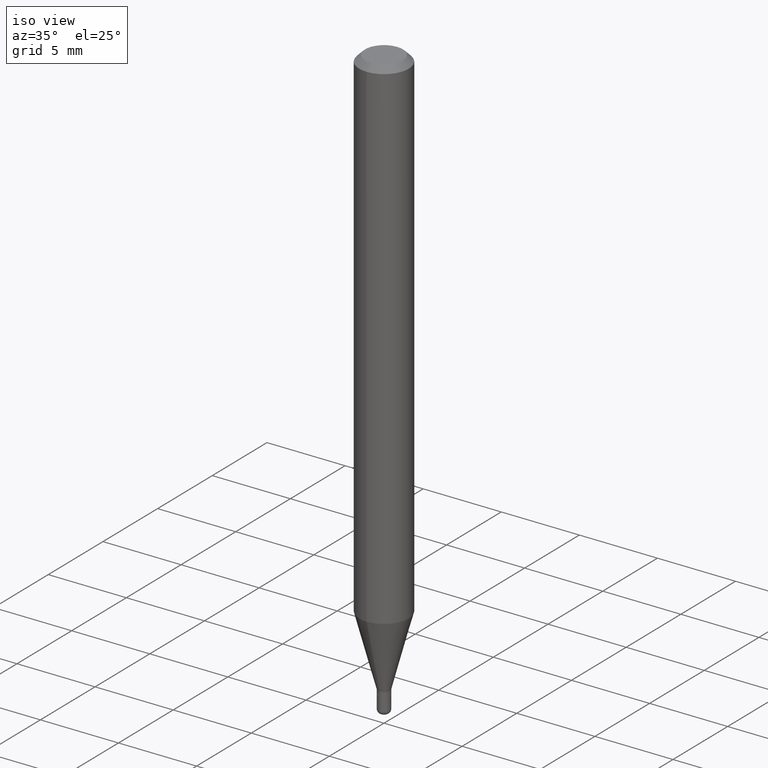
[diagram: clean part render]
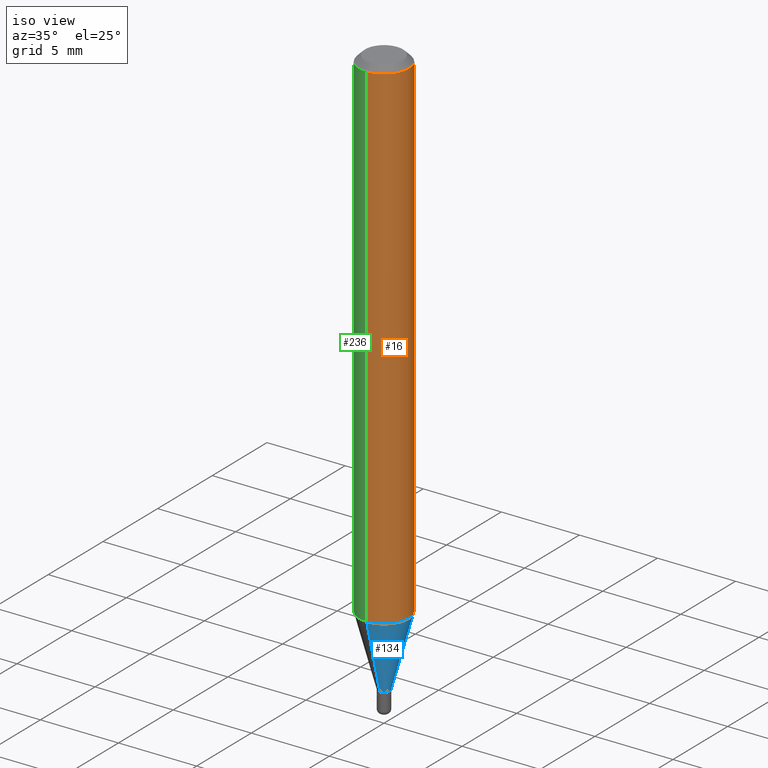
[diagram: same view with three faces highlighted in distinct colors, each labeled with its STEP entity id]
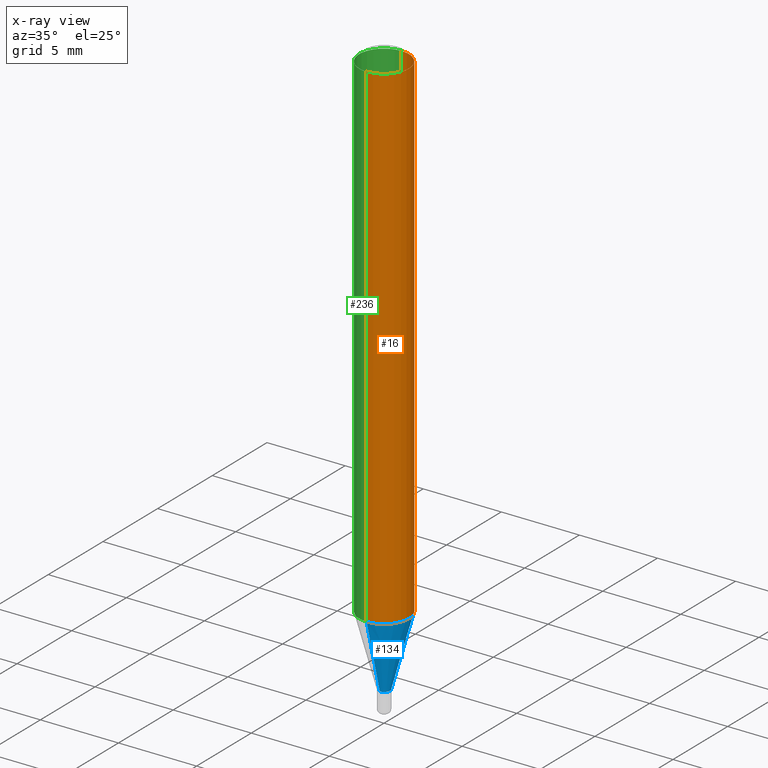
[diagram: x-ray of the same camera — body ghosted, the three highlighted faces saturated]
A machine part, iso view with three faces highlighted in distinct colors.
The next image is the same camera in x-ray (body ghosted, the three faces saturated) — at least one of them is partly hidden behind the body in this view.
Their STEP definitions:

[orange] entity #16 — the highlighted cylindrical surface (edge-blend (fillet) strip) has radius 1.5875 mm, axis along (-0, 0, 1).
#1 = ORIENTED_EDGE ( 'NONE', *, *, #113, .T. ) ;
#7 = DIRECTION ( 'NONE',  ( -2.445486429573082884E-29, 3.491456101148545241E-15, 1.000000000000000000 ) ) ;
#8 = EDGE_CURVE ( 'NONE', #345, #23, #160, .T. ) ;
#15 = ORIENTED_EDGE ( 'NONE', *, *, #8, .F. ) ;
#16 = ADVANCED_FACE ( 'NONE', ( #484 ), #20, .T. ) ;
#17 = DIRECTION ( 'NONE',  ( -2.445486429573083164E-29, 3.491456101148545241E-15, 1.000000000000000000 ) ) ;
#20 = CYLINDRICAL_SURFACE ( 'NONE', #120, 0.06250000000000000000 ) ;
#23 = VERTEX_POINT ( 'NONE', #129 ) ;
#27 = DIRECTION ( 'NONE',  ( -6.982962677686265922E-15, -1.000000000000000000, 3.483106191921935554E-15 ) ) ;
#85 = AXIS2_PLACEMENT_3D ( 'NONE', #322, #435, #27 ) ;
#91 = DIRECTION ( 'NONE',  ( -6.982962677686265922E-15, -1.000000000000000000, 3.491456101148544846E-15 ) ) ;
#113 = EDGE_CURVE ( 'NONE', #345, #328, #374, .T. ) ;
#120 = AXIS2_PLACEMENT_3D ( 'NONE', #304, #494, #91 ) ;
#129 = CARTESIAN_POINT ( 'NONE',  ( -4.364351673553912750E-16, -0.06250000000000005551, -0.01499999999999948597 ) ) ;
#151 = CARTESIAN_POINT ( 'NONE',  ( 4.440892098500937762E-16, 0.06249999999999993755, -0.01499999999999992138 ) ) ;
#160 = LINE ( 'NONE', #200, #175 ) ;
#165 = EDGE_LOOP ( 'NONE', ( #1, #517, #490, #15 ) ) ;
#167 = AXIS2_PLACEMENT_3D ( 'NONE', #174, #17, #269 ) ;
#174 = CARTESIAN_POINT ( 'NONE',  ( 3.100210609524725780E-29, -4.426215216970220777E-15, -1.267727586640478687 ) ) ;
#175 = VECTOR ( 'NONE', #7, 39.37007874015748143 ) ;
#200 = CARTESIAN_POINT ( 'NONE',  ( -4.364351673553916201E-16, -0.06250000000000000000, 2.182160063217840529E-16 ) ) ;
#226 = CARTESIAN_POINT ( 'NONE',  ( 4.440892098500932831E-16, 0.06249999999999555911, -1.267727586640479132 ) ) ;
#265 = EDGE_CURVE ( 'NONE', #23, #482, #335, .T. ) ;
#269 = DIRECTION ( 'NONE',  ( -6.982962677686265922E-15, -1.000000000000000000, 4.370956789862821150E-15 ) ) ;
#304 = CARTESIAN_POINT ( 'NONE',  ( 0.000000000000000000, 0.000000000000000000, 0.000000000000000000 ) ) ;
#313 = LINE ( 'NONE', #351, #411 ) ;
#317 = CARTESIAN_POINT ( 'NONE',  ( -4.364351673553607559E-16, -0.06250000000000444089, -1.267727586640478465 ) ) ;
#319 = DIRECTION ( 'NONE',  ( -2.445486429573082884E-29, 3.491456101148545241E-15, 1.000000000000000000 ) ) ;
#322 = CARTESIAN_POINT ( 'NONE',  ( 3.668229644359552001E-31, -5.237184151722713929E-17, -0.01499999999999970281 ) ) ;
#328 = VERTEX_POINT ( 'NONE', #226 ) ;
#335 = CIRCLE ( 'NONE', #85, 0.06250000000000000000 ) ;
#345 = VERTEX_POINT ( 'NONE', #317 ) ;
#351 = CARTESIAN_POINT ( 'NONE',  ( 4.440892098500625669E-16, 0.06250000000000000000, -2.182160063217840529E-16 ) ) ;
#374 = CIRCLE ( 'NONE', #167, 0.06250000000000000000 ) ;
#411 = VECTOR ( 'NONE', #319, 39.37007874015748143 ) ;
#419 = EDGE_CURVE ( 'NONE', #328, #482, #313, .T. ) ;
#435 = DIRECTION ( 'NONE',  ( -2.445486429573083164E-29, 3.491456101148545241E-15, 1.000000000000000000 ) ) ;
#482 = VERTEX_POINT ( 'NONE', #151 ) ;
#484 = FACE_OUTER_BOUND ( 'NONE', #165, .T. ) ;
#490 = ORIENTED_EDGE ( 'NONE', *, *, #265, .F. ) ;
#494 = DIRECTION ( 'NONE',  ( -2.445486429573083164E-29, 3.491456101148545241E-15, 1.000000000000000000 ) ) ;
#517 = ORIENTED_EDGE ( 'NONE', *, *, #419, .T. ) ;

[blue] entity #134 — the highlighted conical surface has half-angle 15 deg.
#13 = CONICAL_SURFACE ( 'NONE', #445, 0.01500000000000004455, 0.2617993877991494078 ) ;
#17 = DIRECTION ( 'NONE',  ( -2.445486429573083164E-29, 3.491456101148545241E-15, 1.000000000000000000 ) ) ;
#24 = CARTESIAN_POINT ( 'NONE',  ( 3.533727890733106107E-29, -5.045154066159648808E-15, -1.445000000000000284 ) ) ;
#28 = VECTOR ( 'NONE', #380, 39.37007874015748854 ) ;
#31 = CARTESIAN_POINT ( 'NONE',  ( -1.047444401652589802E-16, -0.01500000000000509086, -1.445000000000000284 ) ) ;
#38 = CIRCLE ( 'NONE', #361, 0.01500000000000004455 ) ;
#61 = ORIENTED_EDGE ( 'NONE', *, *, #113, .F. ) ;
#72 = CARTESIAN_POINT ( 'NONE',  ( 1.065814103640506706E-16, 0.01499999999999499997, -1.445000000000000284 ) ) ;
#92 = CARTESIAN_POINT ( 'NONE',  ( 3.533727890733106107E-29, -5.045154066159648808E-15, -1.445000000000000284 ) ) ;
#95 = EDGE_CURVE ( 'NONE', #410, #118, #38, .T. ) ;
#97 = DIRECTION ( 'NONE',  ( -6.982962677686266711E-15, -1.000000000000000000, 0.000000000000000000 ) ) ;
#113 = EDGE_CURVE ( 'NONE', #345, #328, #374, .T. ) ;
#118 = VERTEX_POINT ( 'NONE', #262 ) ;
#134 = ADVANCED_FACE ( 'NONE', ( #379 ), #13, .T. ) ;
#141 = LINE ( 'NONE', #72, #28 ) ;
#146 = LINE ( 'NONE', #386, #375 ) ;
#156 = EDGE_LOOP ( 'NONE', ( #180, #363, #61, #460 ) ) ;
#167 = AXIS2_PLACEMENT_3D ( 'NONE', #174, #17, #269 ) ;
#174 = CARTESIAN_POINT ( 'NONE',  ( 3.100210609524725780E-29, -4.426215216970220777E-15, -1.267727586640478687 ) ) ;
#179 = DIRECTION ( 'NONE',  ( -2.445486429573083164E-29, 3.491456101148545241E-15, 1.000000000000000000 ) ) ;
#180 = ORIENTED_EDGE ( 'NONE', *, *, #95, .T. ) ;
#226 = CARTESIAN_POINT ( 'NONE',  ( 4.440892098500932831E-16, 0.06249999999999555911, -1.267727586640479132 ) ) ;
#262 = CARTESIAN_POINT ( 'NONE',  ( 2.753353101070722973E-16, 0.01499999999999500171, -1.445000000000000284 ) ) ;
#269 = DIRECTION ( 'NONE',  ( -6.982962677686265922E-15, -1.000000000000000000, 4.370956789862821150E-15 ) ) ;
#314 = EDGE_CURVE ( 'NONE', #410, #345, #146, .T. ) ;
#317 = CARTESIAN_POINT ( 'NONE',  ( -4.364351673553607559E-16, -0.06250000000000444089, -1.267727586640478465 ) ) ;
#328 = VERTEX_POINT ( 'NONE', #226 ) ;
#345 = VERTEX_POINT ( 'NONE', #317 ) ;
#346 = DIRECTION ( 'NONE',  ( -6.982962677686266711E-15, -1.000000000000000000, 0.000000000000000000 ) ) ;
#360 = EDGE_CURVE ( 'NONE', #118, #328, #141, .T. ) ;
#361 = AXIS2_PLACEMENT_3D ( 'NONE', #92, #179, #346 ) ;
#363 = ORIENTED_EDGE ( 'NONE', *, *, #360, .T. ) ;
#374 = CIRCLE ( 'NONE', #167, 0.06250000000000000000 ) ;
#375 = VECTOR ( 'NONE', #470, 39.37007874015748854 ) ;
#379 = FACE_OUTER_BOUND ( 'NONE', #156, .T. ) ;
#380 = DIRECTION ( 'NONE',  ( 1.839019923739594004E-15, 0.2588190451025240701, 0.9659258262890673130 ) ) ;
#386 = CARTESIAN_POINT ( 'NONE',  ( -1.047444401652589802E-16, -0.01500000000000509086, -1.445000000000000284 ) ) ;
#410 = VERTEX_POINT ( 'NONE', #31 ) ;
#445 = AXIS2_PLACEMENT_3D ( 'NONE', #24, #461, #97 ) ;
#460 = ORIENTED_EDGE ( 'NONE', *, *, #314, .F. ) ;
#461 = DIRECTION ( 'NONE',  ( -2.445486429573083164E-29, 3.491456101148545241E-15, 1.000000000000000000 ) ) ;
#470 = DIRECTION ( 'NONE',  ( -1.807323732225323828E-15, -0.2588190451025172978, 0.9659258262890690894 ) ) ;

[green] entity #236 — the highlighted cylindrical surface (edge-blend (fillet) strip) has radius 1.5875 mm, axis along (-0, 0, 1).
#5 = AXIS2_PLACEMENT_3D ( 'NONE', #391, #230, #393 ) ;
#7 = DIRECTION ( 'NONE',  ( -2.445486429573082884E-29, 3.491456101148545241E-15, 1.000000000000000000 ) ) ;
#8 = EDGE_CURVE ( 'NONE', #345, #23, #160, .T. ) ;
#23 = VERTEX_POINT ( 'NONE', #129 ) ;
#34 = DIRECTION ( 'NONE',  ( -6.982962677686265922E-15, -1.000000000000000000, 3.491456101148544846E-15 ) ) ;
#63 = ORIENTED_EDGE ( 'NONE', *, *, #8, .T. ) ;
#71 = CARTESIAN_POINT ( 'NONE',  ( 0.000000000000000000, 0.000000000000000000, 0.000000000000000000 ) ) ;
#100 = DIRECTION ( 'NONE',  ( -2.445486429573083164E-29, 3.491456101148545241E-15, 1.000000000000000000 ) ) ;
#129 = CARTESIAN_POINT ( 'NONE',  ( -4.364351673553912750E-16, -0.06250000000000005551, -0.01499999999999948597 ) ) ;
#151 = CARTESIAN_POINT ( 'NONE',  ( 4.440892098500937762E-16, 0.06249999999999993755, -0.01499999999999992138 ) ) ;
#160 = LINE ( 'NONE', #200, #175 ) ;
#175 = VECTOR ( 'NONE', #7, 39.37007874015748143 ) ;
#189 = DIRECTION ( 'NONE',  ( -2.445486429573083164E-29, 3.491456101148545241E-15, 1.000000000000000000 ) ) ;
#200 = CARTESIAN_POINT ( 'NONE',  ( -4.364351673553916201E-16, -0.06250000000000000000, 2.182160063217840529E-16 ) ) ;
#213 = EDGE_CURVE ( 'NONE', #328, #345, #489, .T. ) ;
#226 = CARTESIAN_POINT ( 'NONE',  ( 4.440892098500932831E-16, 0.06249999999999555911, -1.267727586640479132 ) ) ;
#230 = DIRECTION ( 'NONE',  ( -2.445486429573083164E-29, 3.491456101148545241E-15, 1.000000000000000000 ) ) ;
#236 = ADVANCED_FACE ( 'NONE', ( #284 ), #432, .T. ) ;
#249 = ORIENTED_EDGE ( 'NONE', *, *, #427, .F. ) ;
#284 = FACE_OUTER_BOUND ( 'NONE', #290, .T. ) ;
#290 = EDGE_LOOP ( 'NONE', ( #311, #292, #63, #249 ) ) ;
#292 = ORIENTED_EDGE ( 'NONE', *, *, #213, .T. ) ;
#311 = ORIENTED_EDGE ( 'NONE', *, *, #419, .F. ) ;
#313 = LINE ( 'NONE', #351, #411 ) ;
#315 = DIRECTION ( 'NONE',  ( -6.982962677686265922E-15, -1.000000000000000000, 4.370956789862821150E-15 ) ) ;
#317 = CARTESIAN_POINT ( 'NONE',  ( -4.364351673553607559E-16, -0.06250000000000444089, -1.267727586640478465 ) ) ;
#319 = DIRECTION ( 'NONE',  ( -2.445486429573082884E-29, 3.491456101148545241E-15, 1.000000000000000000 ) ) ;
#328 = VERTEX_POINT ( 'NONE', #226 ) ;
#345 = VERTEX_POINT ( 'NONE', #317 ) ;
#349 = AXIS2_PLACEMENT_3D ( 'NONE', #71, #100, #34 ) ;
#351 = CARTESIAN_POINT ( 'NONE',  ( 4.440892098500625669E-16, 0.06250000000000000000, -2.182160063217840529E-16 ) ) ;
#385 = CIRCLE ( 'NONE', #5, 0.06250000000000000000 ) ;
#390 = CARTESIAN_POINT ( 'NONE',  ( 3.100210609524725780E-29, -4.426215216970220777E-15, -1.267727586640478687 ) ) ;
#391 = CARTESIAN_POINT ( 'NONE',  ( 3.668229644359552001E-31, -5.237184151722713929E-17, -0.01499999999999970281 ) ) ;
#393 = DIRECTION ( 'NONE',  ( -6.982962677686265922E-15, -1.000000000000000000, 3.483106191921935554E-15 ) ) ;
#411 = VECTOR ( 'NONE', #319, 39.37007874015748143 ) ;
#419 = EDGE_CURVE ( 'NONE', #328, #482, #313, .T. ) ;
#427 = EDGE_CURVE ( 'NONE', #482, #23, #385, .T. ) ;
#432 = CYLINDRICAL_SURFACE ( 'NONE', #349, 0.06250000000000000000 ) ;
#478 = AXIS2_PLACEMENT_3D ( 'NONE', #390, #189, #315 ) ;
#482 = VERTEX_POINT ( 'NONE', #151 ) ;
#489 = CIRCLE ( 'NONE', #478, 0.06250000000000000000 ) ;